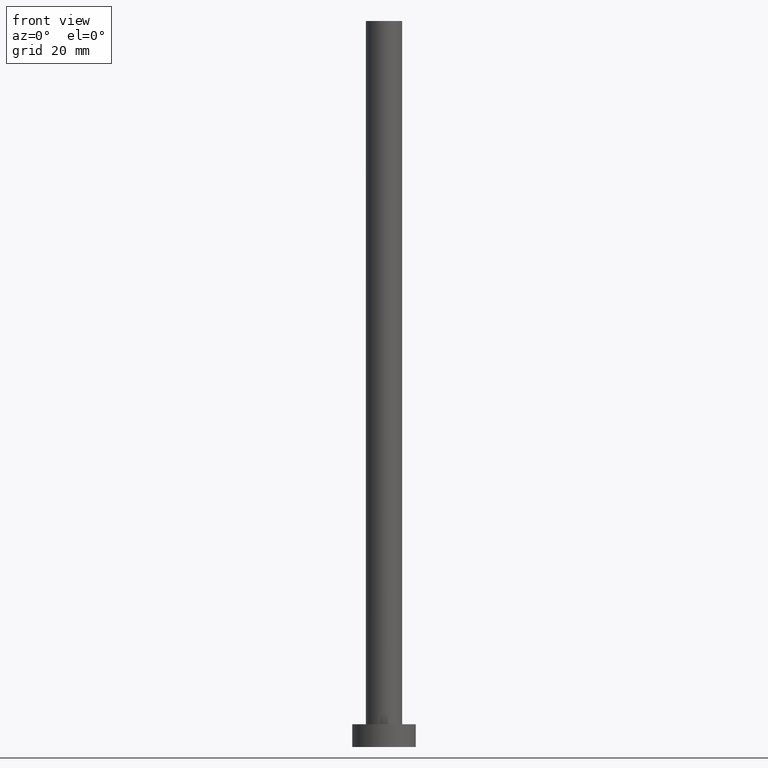
[diagram: clean part render]
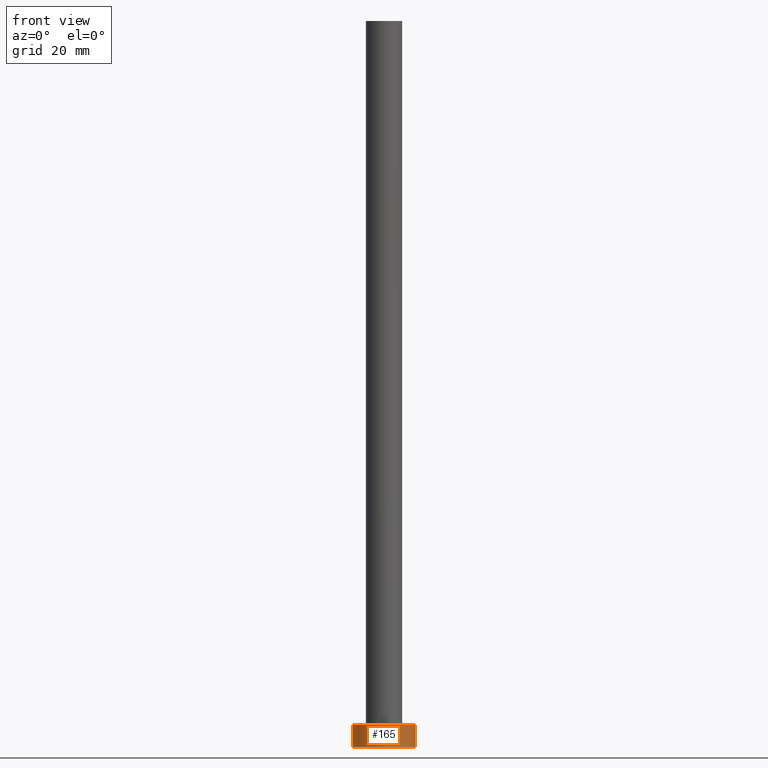
[diagram: same view with one face highlighted and labeled with its STEP entity id]
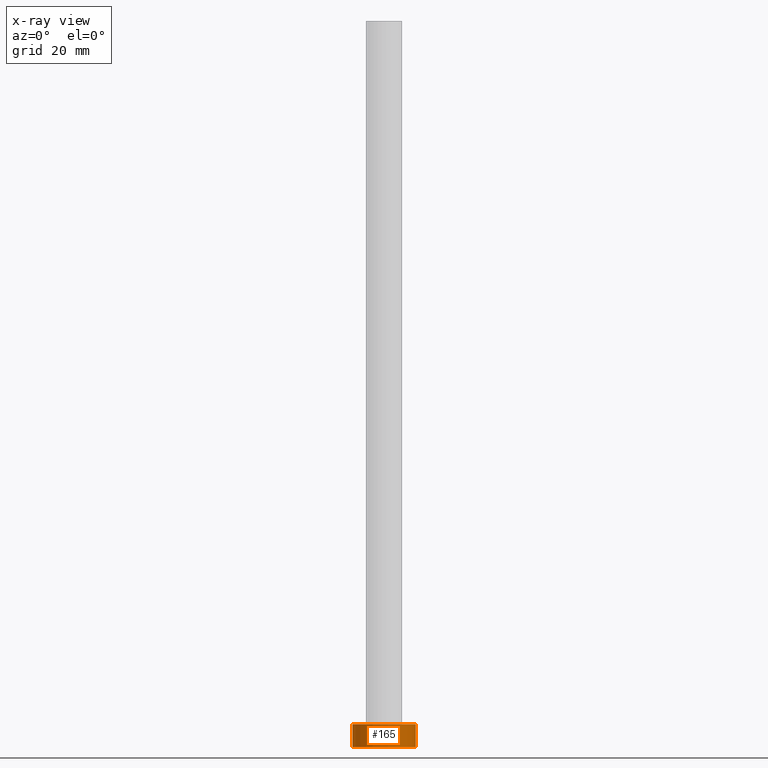
[diagram: x-ray of the same camera — body ghosted, the highlighted face saturated]
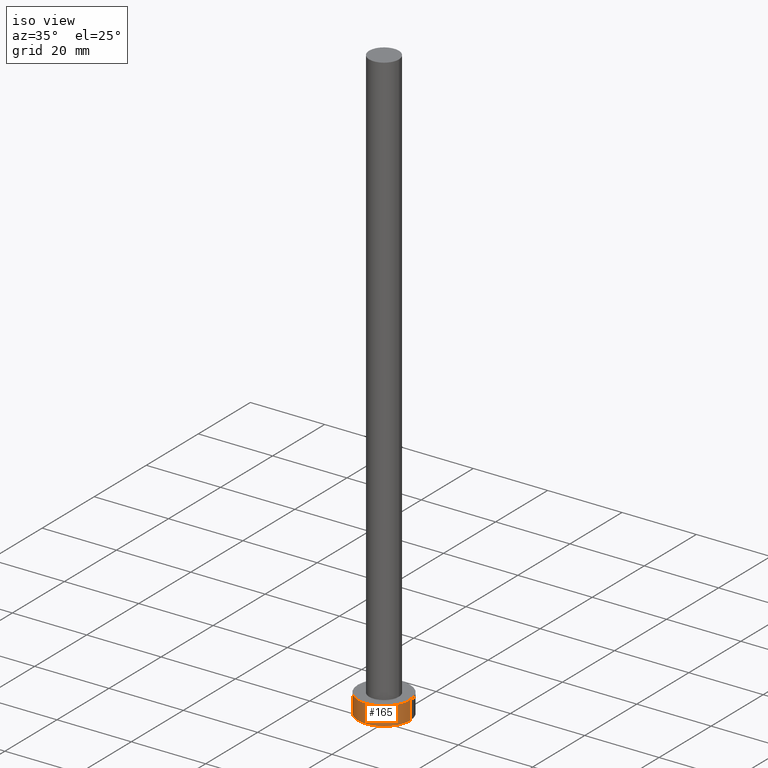
[diagram: same view with one face highlighted and labeled with its STEP entity id]
A machine part, front view. The second image highlights one B-rep face of the part: STEP entity #165.
The next image is the same camera in x-ray: the body ghosted, the highlighted face saturated — about 0% of this face is hidden behind the body in this view.
A second angle (iso view) of the same face is appended — the face is thin or edge-on in the first view.
In plain terms, the highlighted cylindrical surface (edge-blend (fillet) strip) has radius 7 mm, axis along (-0, -0, -1).
Its self-contained STEP definition (entity closure, byte-faithful):
#7 = CARTESIAN_POINT ( 'NONE',  ( -7.000000000000000000, 0.000000000000000000, 0.000000000000000000 ) ) ;
#12 = DIRECTION ( 'NONE',  ( 1.000000000000000000, 0.000000000000000000, 0.000000000000000000 ) ) ;
#15 = AXIS2_PLACEMENT_3D ( 'NONE', #28, #184, #12 ) ;
#19 = ORIENTED_EDGE ( 'NONE', *, *, #196, .T. ) ;
#23 = EDGE_CURVE ( 'NONE', #197, #116, #25, .T. ) ;
#25 = LINE ( 'NONE', #120, #129 ) ;
#26 = FACE_OUTER_BOUND ( 'NONE', #236, .T. ) ;
#28 = CARTESIAN_POINT ( 'NONE',  ( 0.000000000000000000, 0.000000000000000000, 0.000000000000000000 ) ) ;
#32 = VECTOR ( 'NONE', #198, 1000.000000000000000 ) ;
#40 = LINE ( 'NONE', #83, #32 ) ;
#45 = DIRECTION ( 'NONE',  ( -1.000000000000000000, 0.000000000000000000, 0.000000000000000000 ) ) ;
#48 = CARTESIAN_POINT ( 'NONE',  ( 7.000000000000000000, 8.572527594031473190E-16, 5.000000000000000000 ) ) ;
#49 = CARTESIAN_POINT ( 'NONE',  ( 7.000000000000000000, 8.572527594031473190E-16, 0.000000000000000000 ) ) ;
#55 = EDGE_CURVE ( 'NONE', #133, #175, #40, .T. ) ;
#60 = ORIENTED_EDGE ( 'NONE', *, *, #188, .F. ) ;
#67 = DIRECTION ( 'NONE',  ( 1.000000000000000000, 0.000000000000000000, 0.000000000000000000 ) ) ;
#83 = CARTESIAN_POINT ( 'NONE',  ( 7.000000000000000000, 8.572527594031473190E-16, 5.000000000000000000 ) ) ;
#90 = DIRECTION ( 'NONE',  ( 0.000000000000000000, 0.000000000000000000, 1.000000000000000000 ) ) ;
#107 = CYLINDRICAL_SURFACE ( 'NONE', #200, 7.000000000000000000 ) ;
#115 = CIRCLE ( 'NONE', #230, 7.000000000000000000 ) ;
#116 = VERTEX_POINT ( 'NONE', #7 ) ;
#120 = CARTESIAN_POINT ( 'NONE',  ( -7.000000000000000000, 0.000000000000000000, 5.000000000000000000 ) ) ;
#129 = VECTOR ( 'NONE', #151, 1000.000000000000000 ) ;
#133 = VERTEX_POINT ( 'NONE', #48 ) ;
#134 = ORIENTED_EDGE ( 'NONE', *, *, #23, .T. ) ;
#138 = CARTESIAN_POINT ( 'NONE',  ( 0.000000000000000000, 0.000000000000000000, 5.000000000000000000 ) ) ;
#151 = DIRECTION ( 'NONE',  ( -0.000000000000000000, -0.000000000000000000, -1.000000000000000000 ) ) ;
#164 = CARTESIAN_POINT ( 'NONE',  ( 0.000000000000000000, 0.000000000000000000, 5.000000000000000000 ) ) ;
#165 = ADVANCED_FACE ( 'NONE', ( #26 ), #107, .T. ) ;
#175 = VERTEX_POINT ( 'NONE', #49 ) ;
#176 = ORIENTED_EDGE ( 'NONE', *, *, #55, .F. ) ;
#184 = DIRECTION ( 'NONE',  ( 0.000000000000000000, 0.000000000000000000, 1.000000000000000000 ) ) ;
#188 = EDGE_CURVE ( 'NONE', #197, #133, #115, .T. ) ;
#196 = EDGE_CURVE ( 'NONE', #116, #175, #211, .T. ) ;
#197 = VERTEX_POINT ( 'NONE', #207 ) ;
#198 = DIRECTION ( 'NONE',  ( -0.000000000000000000, -0.000000000000000000, -1.000000000000000000 ) ) ;
#200 = AXIS2_PLACEMENT_3D ( 'NONE', #138, #225, #45 ) ;
#207 = CARTESIAN_POINT ( 'NONE',  ( -7.000000000000000000, 0.000000000000000000, 5.000000000000000000 ) ) ;
#211 = CIRCLE ( 'NONE', #15, 7.000000000000000000 ) ;
#225 = DIRECTION ( 'NONE',  ( -0.000000000000000000, -0.000000000000000000, -1.000000000000000000 ) ) ;
#230 = AXIS2_PLACEMENT_3D ( 'NONE', #164, #90, #67 ) ;
#236 = EDGE_LOOP ( 'NONE', ( #176, #60, #134, #19 ) ) ;